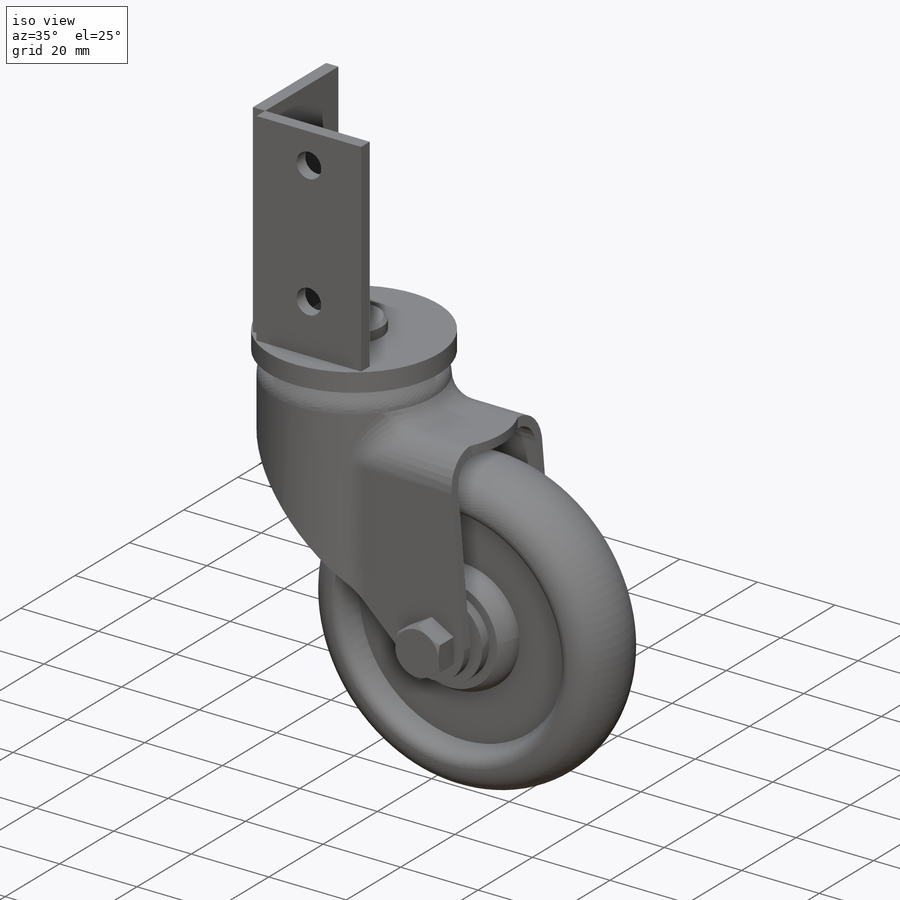
[diagram: iso view]
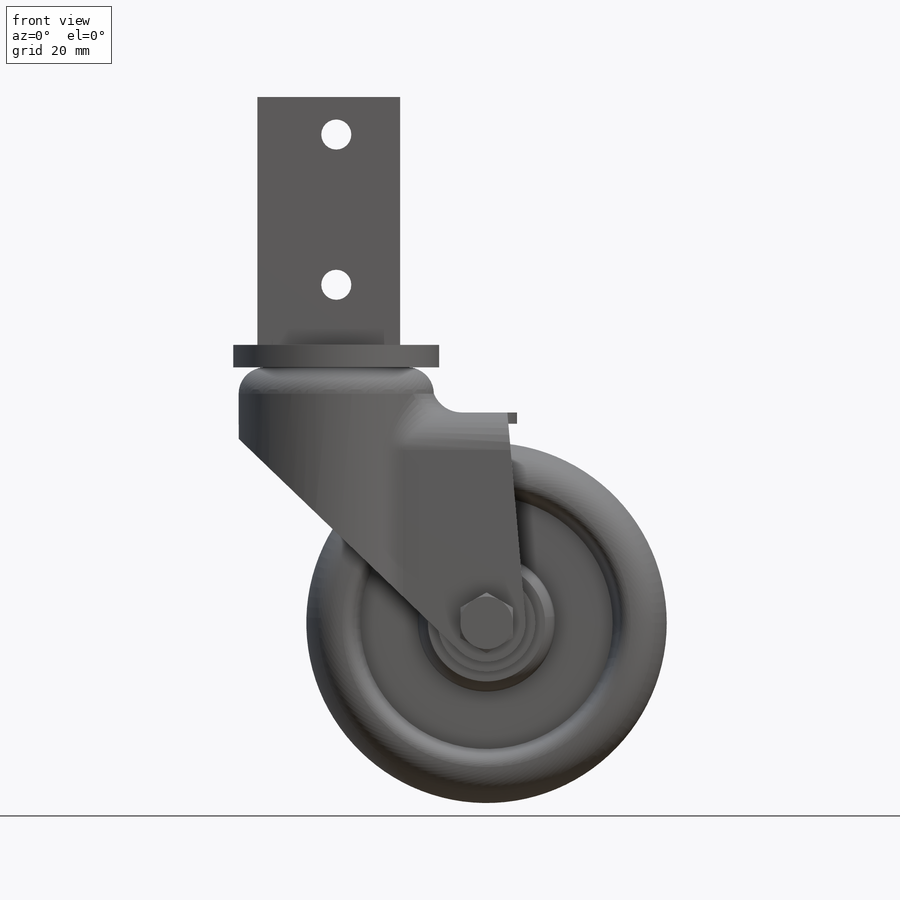
[diagram: front view]
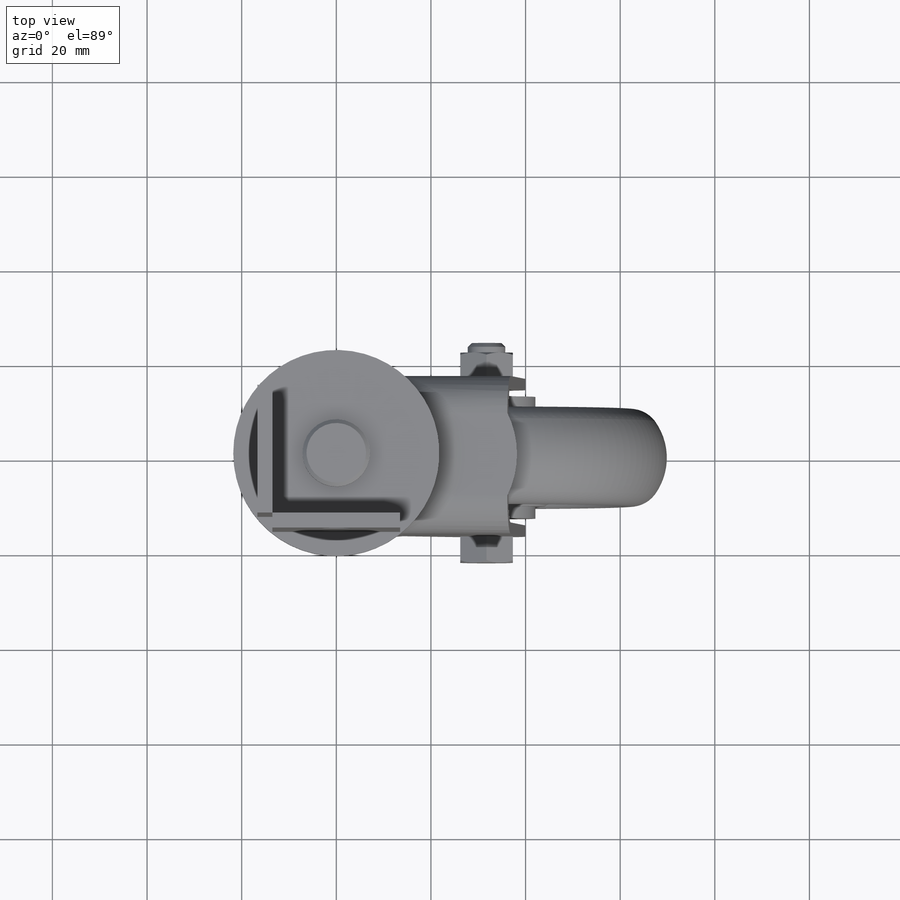
[diagram: top view]
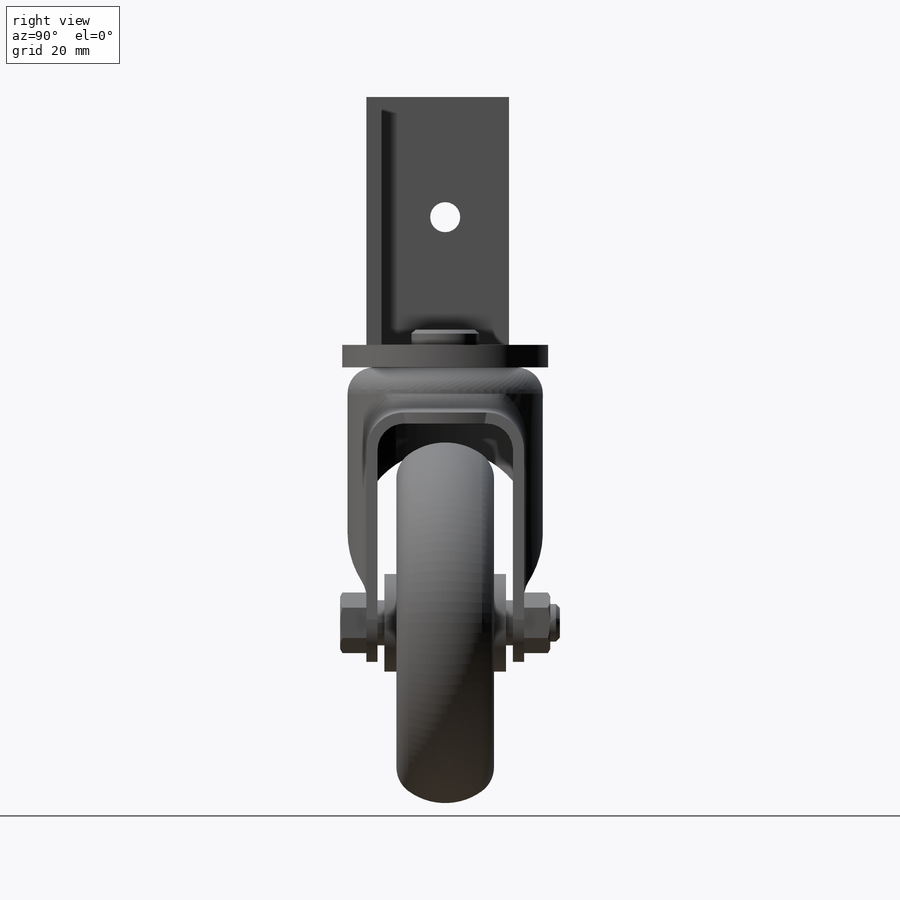
[diagram: right view]
SOLIDWORKS PART (.sldprt)
format: sldprt  version: not decoded by parser v0  size: 901,120 bytes
history: native  units: mm
features: sketch x20, extrude x9, cut_extrude x4, plane x2, revolve x2, fillet x2, mirror x2, chamfer x2, material x1, boolean_combine x1, shell x1 (+13 scaffold rows collapsed)
feature tree (59):
  scaffold x13  (default folders/planes/origin — collapsed)
  material  "Material <not specified>"
  sketch  "Sketch1"  dims[c1.Wheel Dia=76.2mm c1.D2=16.51mm c1.D4=24.3332mm c1.D5=24.3332mm c1.D7=12.1666mm c1.D6=127.0mm c1.D3=88.9mm c2.D4=92.075mm c2.D3=5.588mm c2.D5=76.2mm c2.Swivel Offset=96.8375mm c2.D7=112.395mm c2.D8=163.7284mm c2.Mounting Height=96.8375mm c3.D8=~34.700875mm c4.D8=3.0deg c4.Stem Dia=15.875mm c4.Stem Length=50.8mm c4.D11=~3.704167mm c4.D12=~1.136011mm c4.D13=4.826mm c4.D14=~2.930769mm c4.D4=~3.463636mm c4.Swivel Radius=69.85mm c4.D3=63.5mm c4.D5=25.4mm c4.D6=100.0125mm c5.D6=3.0deg c5.D7=~16.191847mm c5.D8=~7.231944mm c5.D5=10.7315mm c5.D9=25.4mm c6.D7=22.225mm c6.D8=13.335mm c6.D9=~7.408333mm c6.D4=9.525mm c6.D6=4.7625mm c7.D7=6.35mm c7.D8=87.3125mm c8.D8=5.0deg c8.D3=41.275mm c8.D5=44.45mm c9.D5=5.0deg]
  plane  "Plane2"
  sketch  "Sketch16"  dims[Wheel Width=20.6375mm D1=15.875mm D2=~10.390909mm]
  sketch  "Sketch2"
  revolve  "Revolve1"  Angle=360deg
  sketch  "Sketch7"  dims[c1.D6=24.892mm c1.D7=8.89mm c1.D14=~1.209143mm c1.D13=2.54mm c1.D1=50.8mm c1.D2=29.7942mm c1.Wheel Width=31.75mm c1.D4=~8.73125mm c1.D5=81.28mm c2.D2=~1.11125mm c2.D8=20.6375mm c2.D9=2.2225mm c2.D10=7.9375mm c2.D11=45.4025mm c2.D3=17.4625mm c2.D6=~12.672612mm c2.D7=~3.656226mm c3.D10=~2.742169mm c3.D4=3.175mm c3.D12=~17.28609mm c3.D13=~8.453438mm c3.D3=~10.59237mm c3.D15=~8.355588mm c4.D3=7.9375mm c4.D13=~3.627428mm c4.D15=17.4625mm c4.D5=~23.599395mm c5.D3=15.875mm c5.D4=75.565mm c5.D5=~10.055136mm c5.D6=~3.351712mm c5.D7=~2.886992mm c5.D10=~18.07495mm c5.D12=~10.835773mm c6.D4=60.96mm c6.D5=2.54mm c6.D6=21.9075mm c6.D7=~16.430625mm c6.D10=~8.215312mm c7.D5=2.54mm c7.D2=~3.33375mm c7.Wheel Width=31.75mm c7.D1=~5.159375mm c8.D2=2.54mm c8.D3=1.27mm c8.D6=24.765mm c8.D7=~7.204649mm c9.D7=22.5deg c9.D9=0.508mm c9.D10=1.905mm c9.D11=6.6675mm c10.D11=22.25deg c10.D12=17.145mm c10.D2=31.75mm c10.D3=2.54mm c10.D10=2.54mm c11.D12=7.9375mm c12.D12=45.0deg c12.D2=31.75mm]
  revolve  "Poly"  Angle=360deg
  sketch  "Sketch5"  dims[D1=41.275mm]
  extrude  "Extrude1"  [1 undecoded]
  plane  "Plane1"
  sketch  "Sketch6"  dims[c1.D1=~51.27625mm c1.D2=3.937mm c1.D3=12.1666mm c1.D4=25.4mm c2.D3=16.9164mm c2.D4=21.1455mm c2.D2=3.429mm c2.D5=~52.71135mm c3.D2=33.3375mm c3.D1=3.9624mm]
  extrude  "Extrude2"  Depth=5.5499mm
  fillet  "Fillet1"  Radius=7.9375mm
  boolean_combine  "Combine1"
  fillet  "Fillet2"  Radius=6.35mm
  shell  "Shell1"  Thickness=2.3749mm leg thickness=2.3749mm
  sketch  "Sketch8"
  cut_extrude  "Extrude3"  [1 undecoded]
  sketch  "Sketch9"  dims[D1=11.1125mm]
  extrude  "Extrude4"  Depth=5.5372mm
  sketch  "Sketch10"
  cut_extrude  "Extrude5"  [1 undecoded]
  sketch  "Sketch11"  dims[D1=9.525mm]
  extrude  "Extrude6"  [1 undecoded]
  mirror  "Mirror2"
  sketch  "Sketch12"  dims[D1=7.9375mm]
  extrude  "Extrude7"  Depth=2.032mm
  chamfer  "Chamfer2"  Distance=0.8255mm Angle=45deg
  sketch  "Sketch13"
  sketch  "Sketch17"  dims[D1=2.032mm]
  extrude  "Extrude8"  [1 undecoded]
  sketch  "Sketch18"  dims[D2=14.2875mm D1=33.3375mm]
  sketch  "Sketch19"  dims[D1=3.175mm]
  extrude  "Extrude9"  Depth=52.3875mm
  sketch  "Sketch20"
  extrude  "Extrude11"  [1 undecoded]
  sketch  "Sketch21"
  extrude  "Extrude12"  Depth=3.2004mm
  chamfer  "Chamfer3"  Distance=0.8255mm Angle=46deg
  sketch  "Sketch22"  dims[c1.D1=6.35mm c1.D2=6.35mm c2.D1=6.35mm c2.D2=31.75mm c2.D3=12.7mm c3.D2=25.4mm]
  cut_extrude  "Extrude13"  [1 undecoded]
  sketch  "Sketch23"  dims[D1=6.35mm D2=25.4mm D3=31.75mm D4=12.7mm]
  cut_extrude  "Extrude14"  Depth=3.9624mm
  sketch  "Sketch24"  dims[D5=~0.00508mm D6=0.254mm D7=5.0mm]
  mirror  "Combine2"
decode coverage: 27 of 43 modeling features carry decoded parameters
note: ~ marks probable driven/reference dimensions
note: 7 parameter values undecoded
summary: no parameter record found for 7 features
note: suppression state not decoded; provenance and decode notes live in map.json
